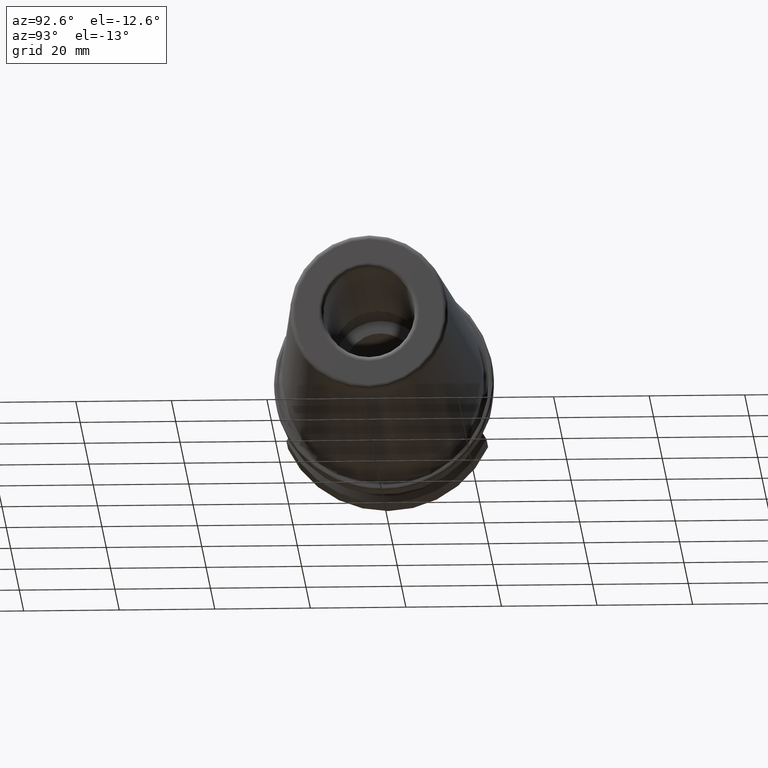
[diagram: clean part render]
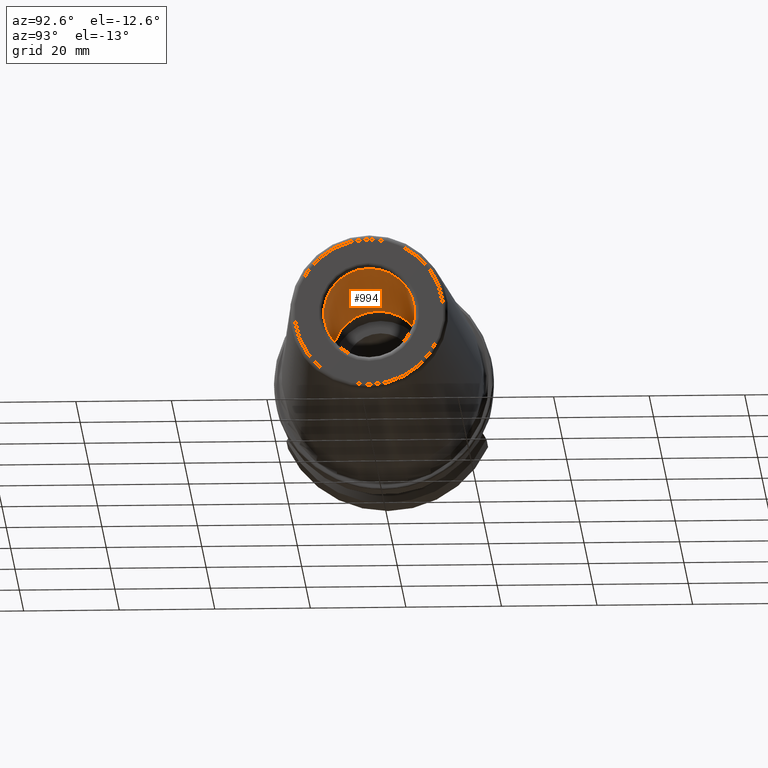
[diagram: same view with one face highlighted and labeled with its STEP entity id]
A machine part, auxiliary view. The second image highlights one B-rep face of the part: STEP entity #994.
In plain terms, the highlighted cylindrical surface (bore or boss wall) has radius 9.525 mm, axis along (1, 0, 0).
Its self-contained STEP definition (entity closure, byte-faithful):
#97=LINE('',#1529,#151);
#151=VECTOR('',#1233,9.525);
#205=CYLINDRICAL_SURFACE('',#1089,9.525);
#225=FACE_OUTER_BOUND('',#289,.T.);
#289=EDGE_LOOP('',(#688,#689,#690,#691));
#357=CIRCLE('',#1084,9.525);
#361=CIRCLE('',#1090,9.525);
#420=VERTEX_POINT('',#1519);
#423=VERTEX_POINT('',#1528);
#522=EDGE_CURVE('',#420,#420,#357,.T.);
#526=EDGE_CURVE('',#420,#423,#97,.T.);
#527=EDGE_CURVE('',#423,#423,#361,.T.);
#688=ORIENTED_EDGE('',*,*,#522,.F.);
#689=ORIENTED_EDGE('',*,*,#526,.T.);
#690=ORIENTED_EDGE('',*,*,#527,.F.);
#691=ORIENTED_EDGE('',*,*,#526,.F.);
#994=ADVANCED_FACE('',(#225),#205,.F.);
#1084=AXIS2_PLACEMENT_3D('',#1520,#1221,#1222);
#1089=AXIS2_PLACEMENT_3D('',#1527,#1231,#1232);
#1090=AXIS2_PLACEMENT_3D('',#1530,#1234,#1235);
#1221=DIRECTION('center_axis',(-1.,0.,0.));
#1222=DIRECTION('ref_axis',(0.,1.22464679914735E-16,1.));
#1231=DIRECTION('center_axis',(1.,0.,0.));
#1232=DIRECTION('ref_axis',(0.,0.,-1.));
#1233=DIRECTION('',(-1.,0.,0.));
#1234=DIRECTION('center_axis',(1.,0.,0.));
#1235=DIRECTION('ref_axis',(0.,0.,-1.));
#1519=CARTESIAN_POINT('',(89.,-1.16647607618785E-15,9.525));
#1520=CARTESIAN_POINT('Origin',(89.,0.,0.));
#1527=CARTESIAN_POINT('Origin',(69.,0.,0.));
#1528=CARTESIAN_POINT('',(48.,-1.16647607618785E-15,9.525));
#1529=CARTESIAN_POINT('',(69.,-1.16647607618785E-15,9.525));
#1530=CARTESIAN_POINT('Origin',(48.,0.,0.));